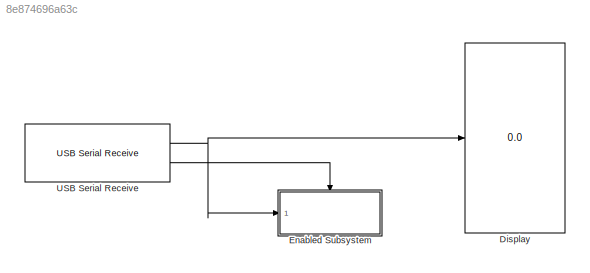
MODEL slx_8e874696a63c
KIND model
CONFIG AbsTol = auto
CONFIG FixedStep = 1
CONFIG MaxStep = auto
CONFIG MinStep = auto
CONFIG RelTol = 1e-3
CONFIG SampleTimeConstraint = Unconstrained
CONFIG Solver = FixedStepAuto
CONFIG SolverMode = Auto
CONFIG SolverName = FixedStepAuto
CONFIG StartTime = 0.0
CONFIG StopTime = inf
BLOCK [Display] Display
  Decimation = 1
  Ports = [1]
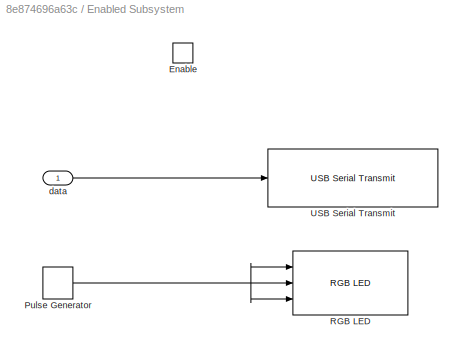
BLOCK [SubSystem] Enabled Subsystem
  Ports = [1, 0, 1]
  RequestExecContextInheritance = off
  TreatAsAtomicUnit = on
  Variant = off
BLOCK [EnablePort] Enabled Subsystem/Enable
  Ports = []
BLOCK [DiscretePulseGenerator] Enabled Subsystem/Pulse Generator
  Amplitude = 100
  Ports = [0, 1]
  SampleTime = -1
BLOCK [Reference] Enabled Subsystem/RGB LED  REF=frdmkl25zlib/RGB LED
  Ports = [3]
  SourceBlock = frdmkl25zlib/RGB LED
  SourceType = RGB LED
BLOCK [Reference] Enabled Subsystem/USB Serial Transmit  REF=frdmKL25Z/USB Serial Transmit
  Ports = [1]
  SourceBlock = frdmKL25Z/USB Serial Transmit
  SourceType = frdmUSBserialTxClass
BLOCK [Inport] Enabled Subsystem/data
  IconDisplay = Port number
BLOCK [Reference] USB Serial Receive  REF=frdmKL25Z/USB Serial Receive
  Ports = [0, 2]
  SourceBlock = frdmKL25Z/USB Serial Receive
  SourceType = frdmUSBserialRxClass
NET Enabled Subsystem/Pulse Generator:1 -> Enabled Subsystem/RGB LED:1, Enabled Subsystem/RGB LED:2, Enabled Subsystem/RGB LED:3
LINE Enabled Subsystem/data:1 -> Enabled Subsystem/USB Serial Transmit:1
NET USB Serial Receive:1 -> Display:1, Enabled Subsystem:1
LINE USB Serial Receive:2 -> Enabled Subsystem:enable
note: NET lines group one-source signal fan-out (src -> all destinations, sorted); 1:1 wires keep LINE
